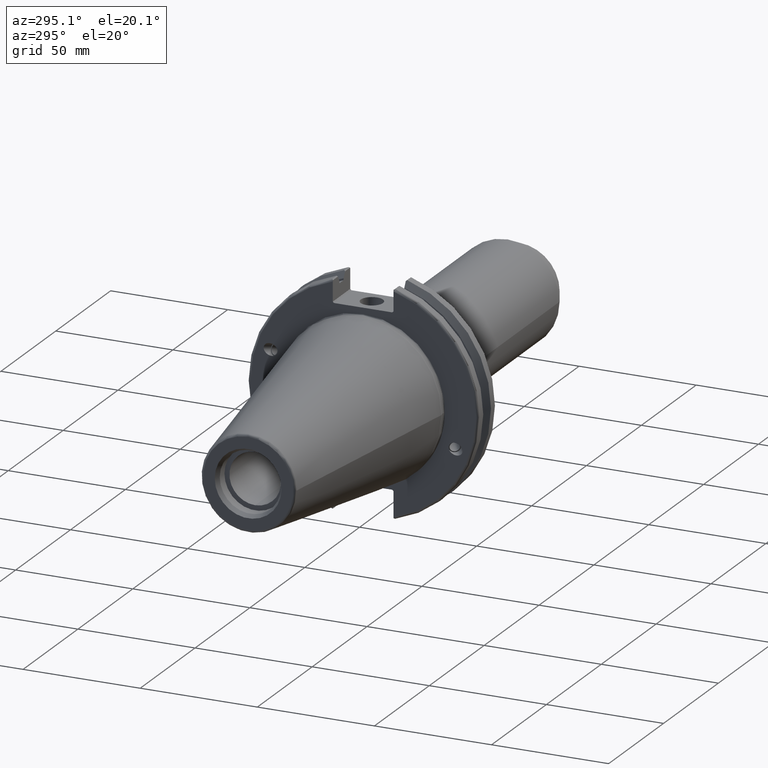
[diagram: clean part render]
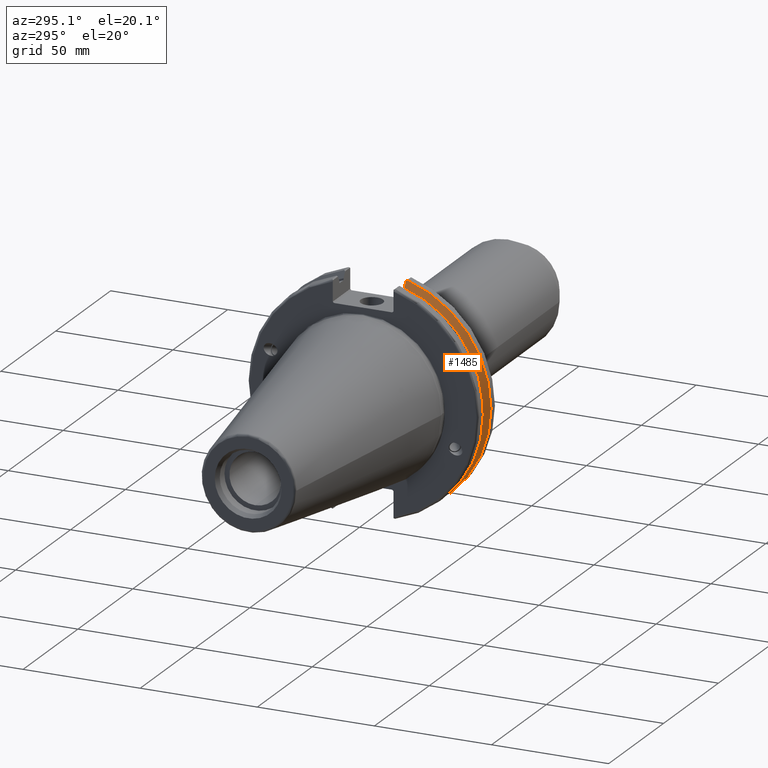
[diagram: same view with one face highlighted and labeled with its STEP entity id]
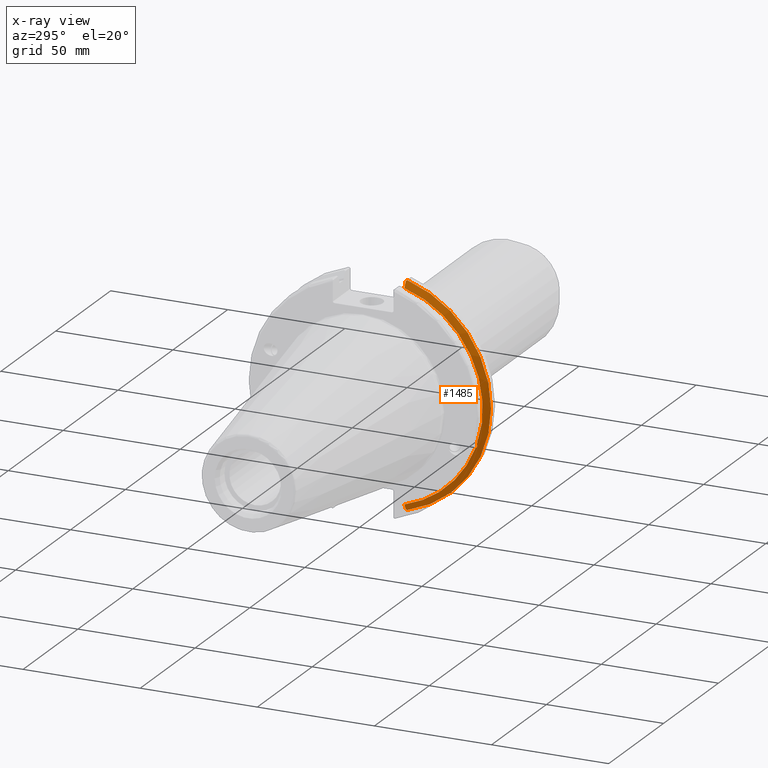
[diagram: x-ray of the same camera — body ghosted, the highlighted face saturated]
A machine part, auxiliary view. The second image highlights one B-rep face of the part: STEP entity #1485.
The next image is the same camera in x-ray: the body ghosted, the highlighted face saturated — about 0% of this face is hidden behind the body in this view.
In plain terms, the highlighted conical surface has half-angle 60 deg.
Its self-contained STEP definition (entity closure, byte-faithful):
#15=(
BOUNDED_CURVE()
B_SPLINE_CURVE(2,(#2548,#2549,#2550),.UNSPECIFIED.,.F.,.F.)
B_SPLINE_CURVE_WITH_KNOTS((3,3),(0.,0.275823910673016),.UNSPECIFIED.)
CURVE()
GEOMETRIC_REPRESENTATION_ITEM()
RATIONAL_B_SPLINE_CURVE((1.,1.00038235574188,1.00012873636688))
REPRESENTATION_ITEM('')
);
#16=(
BOUNDED_CURVE()
B_SPLINE_CURVE(2,(#2552,#2553,#2554),.UNSPECIFIED.,.F.,.F.)
B_SPLINE_CURVE_WITH_KNOTS((3,3),(0.,0.064824047289736),.UNSPECIFIED.)
CURVE()
GEOMETRIC_REPRESENTATION_ITEM()
RATIONAL_B_SPLINE_CURVE((1.,1.00011477674827,1.00019140645933))
REPRESENTATION_ITEM('')
);
#17=(
BOUNDED_CURVE()
B_SPLINE_CURVE(2,(#2558,#2559,#2560),.UNSPECIFIED.,.F.,.F.)
B_SPLINE_CURVE_WITH_KNOTS((3,3),(0.325260944932422,0.390084992222201),
 .UNSPECIFIED.)
CURVE()
GEOMETRIC_REPRESENTATION_ITEM()
RATIONAL_B_SPLINE_CURVE((1.00019140645968,1.00011477674848,1.))
REPRESENTATION_ITEM('')
);
#18=(
BOUNDED_CURVE()
B_SPLINE_CURVE(2,(#2562,#2563,#2564),.UNSPECIFIED.,.F.,.F.)
B_SPLINE_CURVE_WITH_KNOTS((3,3),(0.0558332664513841,0.331657177124504),
 .UNSPECIFIED.)
CURVE()
GEOMETRIC_REPRESENTATION_ITEM()
RATIONAL_B_SPLINE_CURVE((1.0001287363678,1.00038235574463,1.))
REPRESENTATION_ITEM('')
);
#109=B_SPLINE_CURVE_WITH_KNOTS('',3,(#2457,#2458,#2459,#2460,#2461,#2462,
#2463,#2464),.UNSPECIFIED.,.F.,.F.,(4,2,2,4),(0.42671286835872,0.441644498666905,
0.480313313223129,0.518982127779353),.UNSPECIFIED.);
#113=B_SPLINE_CURVE_WITH_KNOTS('',3,(#2519,#2520,#2521,#2522,#2523,#2524,
#2525,#2526),.UNSPECIFIED.,.F.,.F.,(4,2,2,4),(0.518982127779353,0.557650942335576,
0.5963197568918,0.611251387199986),.UNSPECIFIED.);
#187=FACE_OUTER_BOUND('',#281,.T.);
#281=EDGE_LOOP('',(#1108,#1109,#1110,#1111,#1112,#1113,#1114,#1115,#1116));
#568=CIRCLE('',#1621,46.4219772964944);
#569=CIRCLE('',#1622,49.2125);
#570=CIRCLE('',#1623,46.4219772964944);
#657=VERTEX_POINT('',#2454);
#658=VERTEX_POINT('',#2456);
#665=VERTEX_POINT('',#2517);
#671=VERTEX_POINT('',#2545);
#672=VERTEX_POINT('',#2547);
#673=VERTEX_POINT('',#2551);
#674=VERTEX_POINT('',#2555);
#675=VERTEX_POINT('',#2557);
#676=VERTEX_POINT('',#2561);
#822=EDGE_CURVE('',#658,#657,#109,.T.);
#830=EDGE_CURVE('',#657,#665,#113,.T.);
#838=EDGE_CURVE('',#665,#671,#568,.T.);
#839=EDGE_CURVE('',#671,#672,#15,.T.);
#840=EDGE_CURVE('',#673,#672,#16,.T.);
#841=EDGE_CURVE('',#674,#673,#569,.T.);
#842=EDGE_CURVE('',#675,#674,#17,.T.);
#843=EDGE_CURVE('',#675,#676,#18,.T.);
#844=EDGE_CURVE('',#676,#658,#570,.T.);
#1108=ORIENTED_EDGE('',*,*,#822,.T.);
#1109=ORIENTED_EDGE('',*,*,#830,.T.);
#1110=ORIENTED_EDGE('',*,*,#838,.T.);
#1111=ORIENTED_EDGE('',*,*,#839,.T.);
#1112=ORIENTED_EDGE('',*,*,#840,.F.);
#1113=ORIENTED_EDGE('',*,*,#841,.F.);
#1114=ORIENTED_EDGE('',*,*,#842,.F.);
#1115=ORIENTED_EDGE('',*,*,#843,.T.);
#1116=ORIENTED_EDGE('',*,*,#844,.T.);
#1455=CONICAL_SURFACE('',#1620,47.8172386482472,1.0471975511966);
#1485=ADVANCED_FACE('',(#187),#1455,.T.);
#1620=AXIS2_PLACEMENT_3D('',#2544,#1857,#1858);
#1621=AXIS2_PLACEMENT_3D('',#2546,#1859,#1860);
#1622=AXIS2_PLACEMENT_3D('',#2556,#1861,#1862);
#1623=AXIS2_PLACEMENT_3D('',#2565,#1863,#1864);
#1857=DIRECTION('center_axis',(1.,0.,0.));
#1858=DIRECTION('ref_axis',(0.,-1.,-1.22464679914735E-16));
#1859=DIRECTION('center_axis',(1.,0.,0.));
#1860=DIRECTION('ref_axis',(0.,0.,-1.));
#1861=DIRECTION('center_axis',(1.,0.,0.));
#1862=DIRECTION('ref_axis',(0.,0.,-1.));
#1863=DIRECTION('center_axis',(1.,0.,0.));
#1864=DIRECTION('ref_axis',(0.,0.,-1.));
#2454=CARTESIAN_POINT('',(13.2341,-43.923494649906,-15.9868446375166));
#2456=CARTESIAN_POINT('',(13.0491,-43.9096390749305,-15.0646464421033));
#2457=CARTESIAN_POINT('Ctrl Pts',(13.0491,-43.9096390749305,-15.0646464421033));
#2458=CARTESIAN_POINT('Ctrl Pts',(13.0660815609661,-43.9250360001461,-15.1104047527575));
#2459=CARTESIAN_POINT('Ctrl Pts',(13.0821132459668,-43.9385582852181,-15.1564111356409));
#2460=CARTESIAN_POINT('Ctrl Pts',(13.1358132615496,-43.9797830409459,-15.3217566390708));
#2461=CARTESIAN_POINT('Ctrl Pts',(13.1719838933644,-43.9989016655819,-15.4570249042868));
#2462=CARTESIAN_POINT('Ctrl Pts',(13.2212913174802,-43.9931221605126,-15.7289849146254));
#2463=CARTESIAN_POINT('Ctrl Pts',(13.2341,-43.9675796948952,-15.8657219718732));
#2464=CARTESIAN_POINT('Ctrl Pts',(13.2341,-43.923494649906,-15.9868446375166));
#2517=CARTESIAN_POINT('',(13.0491,-43.3201030900029,-16.6843832486479));
#2519=CARTESIAN_POINT('Ctrl Pts',(13.2341,-43.923494649906,-15.9868446375166));
#2520=CARTESIAN_POINT('Ctrl Pts',(13.2341,-43.8794096049169,-16.10796730316));
#2521=CARTESIAN_POINT('Ctrl Pts',(13.2212913174802,-43.8110833825828,-16.2291323464527));
#2522=CARTESIAN_POINT('Ctrl Pts',(13.1719838933644,-43.6406982153492,-16.441180795372));
#2523=CARTESIAN_POINT('Ctrl Pts',(13.1358132615496,-43.5391037343221,-16.5325130832406));
#2524=CARTESIAN_POINT('Ctrl Pts',(13.0821132459668,-43.4012416983557,-16.6326763251437));
#2525=CARTESIAN_POINT('Ctrl Pts',(13.0660815609661,-43.3613106941341,-16.6592273018006));
#2526=CARTESIAN_POINT('Ctrl Pts',(13.0491,-43.3201030900029,-16.6843832486479));
#2544=CARTESIAN_POINT('Origin',(13.8546545170244,0.,0.));
#2545=CARTESIAN_POINT('',(13.0491,-12.95,-44.5791147973604));
#2546=CARTESIAN_POINT('Origin',(13.0491,0.,0.));
#2547=CARTESIAN_POINT('',(14.3818103943757,-12.95,-46.9780755322917));
#2548=CARTESIAN_POINT('Ctrl Pts',(13.0491,-12.95,-44.5791147973604));
#2549=CARTESIAN_POINT('Ctrl Pts',(13.697995509465,-12.95,-45.7494966802572));
#2550=CARTESIAN_POINT('Ctrl Pts',(14.3818103943757,-12.95,-46.9780755322917));
#2551=CARTESIAN_POINT('',(14.6602090340487,-13.4317035994433,-47.3440544806494));
#2552=CARTESIAN_POINT('Ctrl Pts',(14.6602090340487,-13.4317035994433,-47.3440544806494));
#2553=CARTESIAN_POINT('Ctrl Pts',(14.5199310333618,-13.1896660169966,-47.1601640966265));
#2554=CARTESIAN_POINT('Ctrl Pts',(14.3818103943757,-12.95,-46.9780755322917));
#2555=CARTESIAN_POINT('',(14.6602090340487,-13.4317035994433,47.3440544806494));
#2556=CARTESIAN_POINT('Origin',(14.6602090340487,0.,0.));
#2557=CARTESIAN_POINT('',(14.3818103943757,-12.95,46.9780755322918));
#2558=CARTESIAN_POINT('Ctrl Pts',(14.3818103943757,-12.95,46.9780755322918));
#2559=CARTESIAN_POINT('Ctrl Pts',(14.5199310333618,-13.1896660169966,47.1601640966264));
#2560=CARTESIAN_POINT('Ctrl Pts',(14.6602090340487,-13.4317035994433,47.3440544806494));
#2561=CARTESIAN_POINT('',(13.0491,-12.95,44.5791147973604));
#2562=CARTESIAN_POINT('Ctrl Pts',(14.3818103943757,-12.95,46.9780755322917));
#2563=CARTESIAN_POINT('Ctrl Pts',(13.6979955094656,-12.95,45.7494966802583));
#2564=CARTESIAN_POINT('Ctrl Pts',(13.0491,-12.95,44.5791147973604));
#2565=CARTESIAN_POINT('Origin',(13.0491,0.,0.));